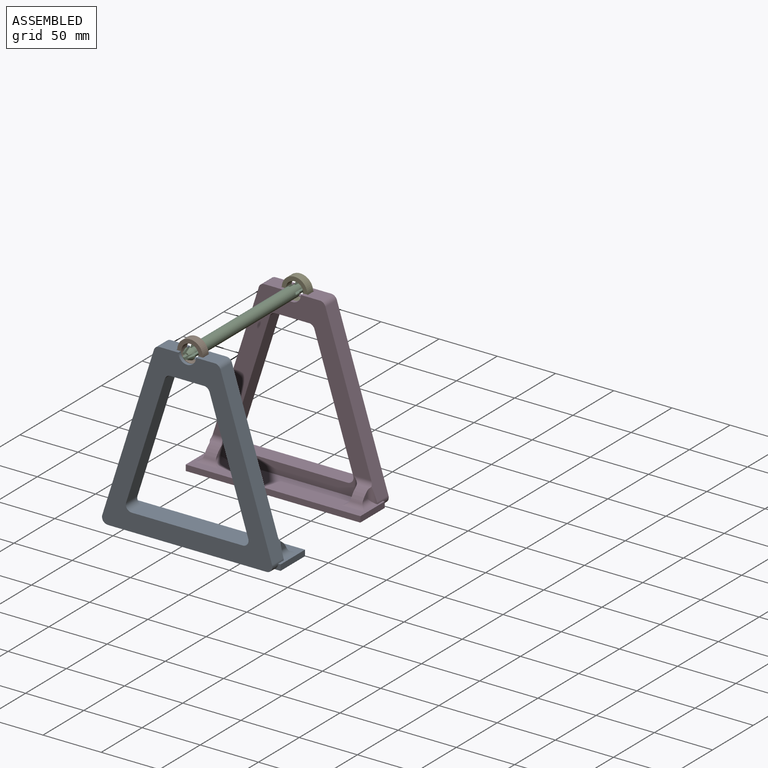
[diagram: assembled view]
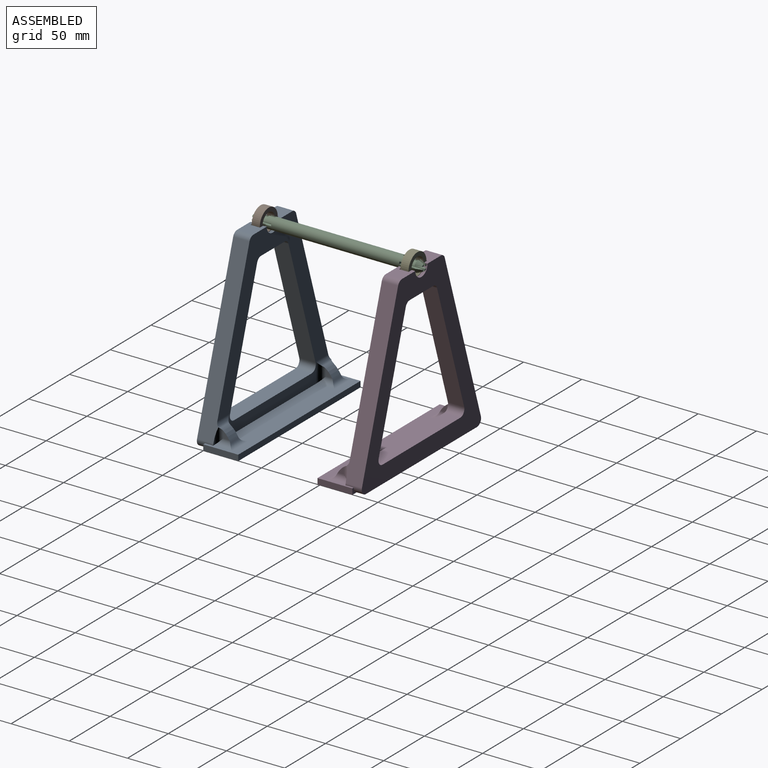
[diagram: assembled view, second angle]
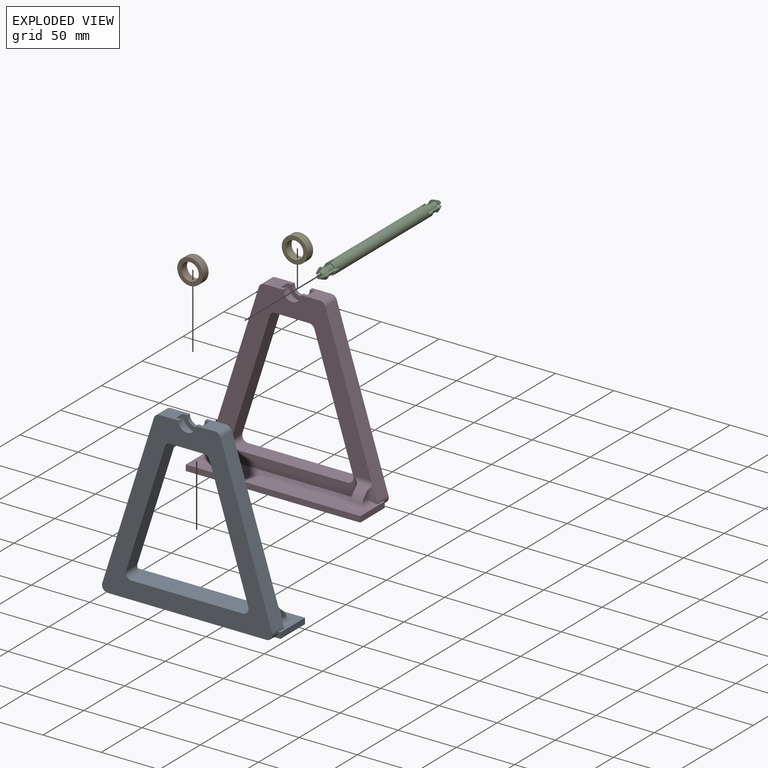
[diagram: exploded view]
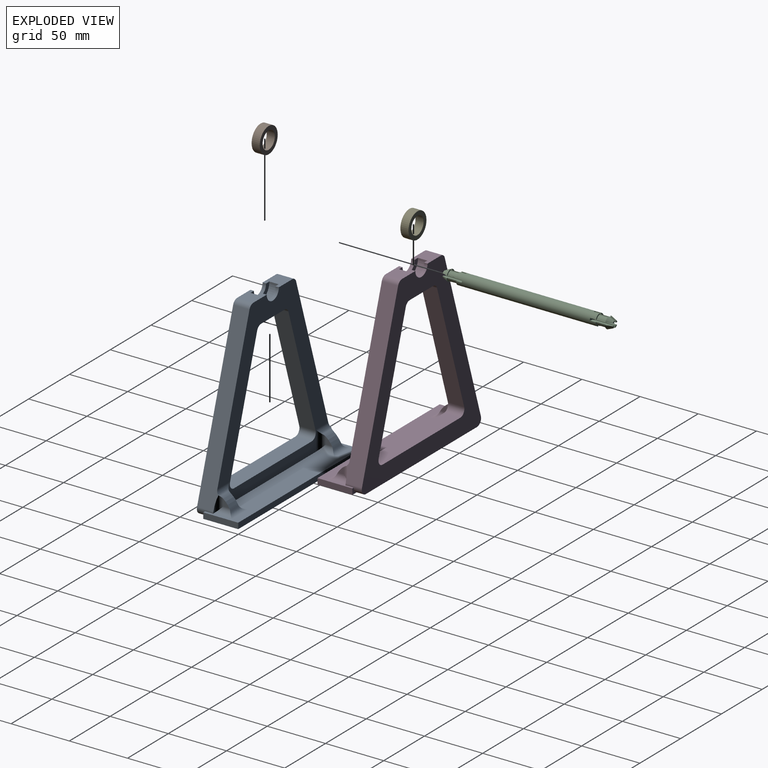
[diagram: exploded view, second angle]
ASSEMBLY  parts=5 mates=2
PART A: 50 faces, bbox 150.1x37.1x150.1 mm
  f0: plane 145x136.11mm, normal (0,-1,0), area 5614.6mm2, adj f2,f4,f5,f6,f7,f8,f9,f10
  f1: plane 1.3x0.17mm, normal (0,-1,0), area 0.1mm2, adj f16,f30,f49
  f2: plane 16.34x14mm, normal (0,0,1), area 196.7mm2, adj f0,f3,f8,f13,f17,f22,f23,f24
  f3: cylinder r=7.5mm len=15mm, axis (0,1,0), area 70.7mm2, adj f2,f4,f13,f23
  f4: plane 16.34x14mm, normal (0,0,1), area 196.7mm2, adj f0,f3,f8,f13,f14,f22,f23,f24
  f5: plane 105x33.25mm, normal (0.95,0,-0.3), area 1541.9mm2, adj f0,f13,f18,f21
  f6: plane 28.88x14mm, normal (0,0,-1), area 404.3mm2, adj f0,f13,f18,f19
  f7: plane 105x33.25mm, normal (-0.95,0,-0.3), area 1541.9mm2, adj f0,f13,f19,f20
  f8: cylinder r=7.5mm len=15mm, axis (0,1,0), area 70.7mm2, adj f0,f2,f4,f24
  f9: plane 140.12x44.45mm, normal (-0.95,0,0.3), area 2064.5mm2, adj f0,f13,f14,f15,f39,f41
  f10: plane 140.12x44.45mm, normal (0.95,0,0.3), area 2064.5mm2, adj f0,f13,f16,f17,f47,f49
  f11: plane 95.38x14mm, normal (0,0,1), area 1335.3mm2, adj f0,f13,f20,f21
  f12: plane 1.3x0.17mm, normal (0,-1,0), area 0.1mm2, adj f15,f30,f39
  f13: plane 150x146.34mm, normal (0,1,0), area 6935.9mm2, adj f2,f3,f4,f5,f6,f7,f9,f10
  f14: cylinder r=5mm len=14mm, axis (0,1,0), area 88.5mm2, adj f0,f4,f9,f13
  f15: cylinder r=5mm len=14mm, axis (0,-1,0), area 76.4mm2, adj f9,f12,f13,f25,f30,f34,f39
  f16: cylinder r=5mm len=14mm, axis (0,1,0), area 76.4mm2, adj f1,f10,f13,f26,f30,f34,f49
  f17: cylinder r=5mm len=14mm, axis (0,1,0), area 88.5mm2, adj f0,f2,f10,f13
  f18: cylinder r=5mm len=14mm, axis (0,1,0), area 88.5mm2, adj f0,f5,f6,f13
  f19: cylinder r=5mm len=14mm, axis (0,-1,0), area 88.5mm2, adj f0,f6,f7,f13
  f20: cylinder r=5mm len=14mm, axis (0,1,0), area 131.4mm2, adj f0,f7,f11,f13
  f21: cylinder r=5mm len=14mm, axis (0,-1,0), area 131.4mm2, adj f0,f5,f11,f13
  f22: cylinder r=11.5mm len=23mm, axis (0,-1,0), area 289mm2, adj f2,f4,f23,f24
  f23: plane 23x11.5mm, normal (0,-1,0), area 119.4mm2, adj f2,f3,f4,f22
  f24: plane 23x11.5mm, normal (0,1,0), area 119.4mm2, adj f2,f4,f8,f22
  f25: plane 7.13x5mm, normal (0,1,0), area 16mm2, adj f15,f27,f30,f34
  f26: plane 6.53x5mm, normal (0,1,0), area 13mm2, adj f16,f29,f30,f34
  f27: plane 30x5mm, normal (-1,0,0), area 150mm2, adj f25,f28,f30,f34
  f28: plane 150x5mm, normal (0,-1,0), area 750mm2, adj f27,f29,f30,f34
  f29: plane 30x5mm, normal (1,0,0), area 150mm2, adj f26,f28,f30,f34
  f30: plane 150x30mm, normal (0,0,1), area 2839.1mm2, adj f0,f1,f12,f15,f16,f25,f26,f27
  f31: plane 6x5.32mm, normal (-1,0,0), area 18.1mm2, adj f33,f44,f45
  f32: plane 6x5.32mm, normal (1,0,0), area 18.1mm2, adj f33,f48,f49
  f33: cylinder r=20mm len=11.23mm, axis (-1,0,0), area 133.4mm2, adj f31,f32,f44,f45,f46,f47,f48,f49
  f34: plane 150x37mm, normal (0,0,-1), area 5454.4mm2, adj f13,f15,f16,f25,f26,f27,f28,f29
  f35: cylinder r=20mm len=11.23mm, axis (-1,0,0), area 133.4mm2, adj f36,f37,f38,f39,f40,f41,f42,f43
  f36: plane 6x5.32mm, normal (1,0,0), area 18.1mm2, adj f35,f42,f43
  f37: plane 6x5.32mm, normal (-1,0,0), area 18.1mm2, adj f35,f38,f39
  f38: cylinder r=5mm len=15.91mm, axis (0,-1,0), area 85.2mm2, adj f30,f35,f37,f39,f40
  f39: cylinder r=5mm len=13.18mm, axis (0,0,-1), area 61.9mm2, adj f9,f12,f15,f35,f37,f38,f41
  f40: cylinder r=5mm len=20mm, axis (-1,0,0), area 85.9mm2, adj f30,f35,f38,f42
  f41: cylinder r=5mm len=16.24mm, axis (-1,0,0), area 71mm2, adj f0,f9,f35,f39,f43
  f42: cylinder r=5mm len=15.91mm, axis (0,1,0), area 85.2mm2, adj f30,f35,f36,f40,f43
  f43: cylinder r=5mm len=16.93mm, axis (0,0,1), area 92.9mm2, adj f0,f35,f36,f41,f42
  f44: cylinder r=5mm len=15.91mm, axis (0,-1,0), area 85.2mm2, adj f30,f31,f33,f45,f46
  f45: cylinder r=5mm len=16.93mm, axis (0,0,-1), area 92.9mm2, adj f0,f31,f33,f44,f47
  f46: cylinder r=5mm len=20mm, axis (-1,0,0), area 85.9mm2, adj f30,f33,f44,f48
  f47: cylinder r=5mm len=16.24mm, axis (-1,0,0), area 71mm2, adj f0,f10,f33,f45,f49
  f48: cylinder r=5mm len=15.91mm, axis (0,1,0), area 85.2mm2, adj f30,f32,f33,f46,f49
  f49: cylinder r=5mm len=13.18mm, axis (0,0,1), area 61.9mm2, adj f1,f10,f16,f32,f33,f47,f48
PART B: 4 faces, bbox 22x7x22 mm
  f0: cylinder r=7.5mm len=15mm, axis (0,1,0), area 329.9mm2, adj f2,f3
  f1: cylinder r=11mm len=22mm, axis (0,1,0), area 483.8mm2, adj f2,f3
  f2: plane 22x22mm, normal (0,-1,0), area 203.4mm2, adj f0,f1
  f3: plane 22x22mm, normal (0,1,0), area 203.4mm2, adj f0,f1
PART C: 59 faces, bbox 10.1x146.1x10.1 mm
  f0: cylinder r=5mm len=120mm, axis (0,1,0), area 3689.4mm2, adj f1,f2,f3,f4,f21,f22,f23,f24
  f1: plane 3.9x3.9mm, normal (0,1,0), area 5.1mm2, adj f0,f5,f21,f28
  f2: plane 3.9x3.9mm, normal (0,1,0), area 5.1mm2, adj f0,f6,f24,f25
  f3: plane 3.9x3.9mm, normal (0,1,0), area 5.1mm2, adj f0,f7,f26,f27
  f4: plane 3.9x3.9mm, normal (0,1,0), area 5.1mm2, adj f0,f8,f22,f23
  f5: cylinder r=4mm len=8mm, axis (0,1,0), area 34.1mm2, adj f1,f9,f21,f28
  f6: cylinder r=4mm len=8mm, axis (0,1,0), area 34.1mm2, adj f2,f10,f24,f25
  f7: cylinder r=4mm len=8mm, axis (0,1,0), area 34.1mm2, adj f3,f11,f26,f27
  f8: cylinder r=4mm len=8mm, axis (0,1,0), area 34.1mm2, adj f4,f12,f22,f23
  f9: plane 3.9x3.9mm, normal (0,-1,0), area 5.1mm2, adj f5,f13,f21,f28
  f10: plane 3.9x3.9mm, normal (0,-1,0), area 5.1mm2, adj f6,f14,f24,f25
  f11: plane 3.9x3.9mm, normal (0,-1,0), area 5.1mm2, adj f7,f15,f26,f27
  f12: plane 3.9x3.9mm, normal (0,-1,0), area 5.1mm2, adj f8,f16,f22,f23
  f13: cone r=3mm half-angle=21.8deg, axis (0,-1,0), area 22.4mm2, adj f9,f17,f21,f28
  f14: cone r=3mm half-angle=21.8deg, axis (0,-1,0), area 22.4mm2, adj f10,f18,f24,f25
  f15: cone r=3mm half-angle=21.8deg, axis (0,-1,0), area 22.4mm2, adj f11,f20,f26,f27
  f16: cone r=3mm half-angle=21.8deg, axis (0,-1,0), area 22.4mm2, adj f12,f19,f22,f23
  f17: plane 1.83x1.83mm, normal (0,1,0), area 2.2mm2, adj f13,f21,f28
  f18: plane 1.83x1.83mm, normal (0,1,0), area 2.2mm2, adj f14,f24,f25
  f19: plane 1.83x1.83mm, normal (0,1,0), area 2.2mm2, adj f16,f22,f23
  f20: plane 1.83x1.83mm, normal (0,1,0), area 2.2mm2, adj f15,f26,f27
  f21: plane 18.14x4.04mm, normal (0,0,-1), area 56.8mm2, adj f0,f1,f5,f9,f13,f17,f28,f29
  f22: plane 18.14x4.04mm, normal (0,0,1), area 56.8mm2, adj f0,f4,f8,f12,f16,f19,f23,f29
  f23: plane 18.14x4.04mm, normal (1,0,0), area 56.8mm2, adj f0,f4,f8,f12,f16,f19,f22,f29
  f24: plane 18.14x4.04mm, normal (-1,0,0), area 56.8mm2, adj f0,f2,f6,f10,f14,f18,f25,f29
  f25: plane 18.14x4.04mm, normal (0,0,1), area 56.8mm2, adj f0,f2,f6,f10,f14,f18,f24,f29
  f26: plane 18.14x4.04mm, normal (0,0,-1), area 56.8mm2, adj f0,f3,f7,f11,f15,f20,f27,f29
  f27: plane 18.14x4.04mm, normal (-1,0,0), area 56.8mm2, adj f0,f3,f7,f11,f15,f20,f26,f29
  f28: plane 18.14x4.04mm, normal (1,0,0), area 56.8mm2, adj f0,f1,f5,f9,f13,f17,f21,f29
  f29: plane 10x10mm, normal (0,1,0), area 35.7mm2, adj f0,f21,f22,f23,f24,f25,f26,f27
  f30: plane 3.9x3.9mm, normal (0,-1,0), area 5.1mm2, adj f0,f34,f50,f57
  f31: plane 3.9x3.9mm, normal (0,-1,0), area 5.1mm2, adj f0,f35,f53,f54
  f32: plane 3.9x3.9mm, normal (0,-1,0), area 5.1mm2, adj f0,f36,f55,f56
  f33: plane 3.9x3.9mm, normal (0,-1,0), area 5.1mm2, adj f0,f37,f51,f52
  f34: cylinder r=4mm len=8mm, axis (0,-1,0), area 34.1mm2, adj f30,f38,f50,f57
  f35: cylinder r=4mm len=8mm, axis (0,-1,0), area 34.1mm2, adj f31,f39,f53,f54
  f36: cylinder r=4mm len=8mm, axis (0,-1,0), area 34.1mm2, adj f32,f40,f55,f56
  f37: cylinder r=4mm len=8mm, axis (0,-1,0), area 34.1mm2, adj f33,f41,f51,f52
  f38: plane 3.9x3.9mm, normal (0,1,0), area 5.1mm2, adj f34,f42,f50,f57
  f39: plane 3.9x3.9mm, normal (0,1,0), area 5.1mm2, adj f35,f43,f53,f54
  f40: plane 3.9x3.9mm, normal (0,1,0), area 5.1mm2, adj f36,f44,f55,f56
  f41: plane 3.9x3.9mm, normal (0,1,0), area 5.1mm2, adj f37,f45,f51,f52
  f42: cone r=3mm half-angle=21.8deg, axis (0,1,0), area 22.4mm2, adj f38,f46,f50,f57
  f43: cone r=3mm half-angle=21.8deg, axis (0,1,0), area 22.4mm2, adj f39,f47,f53,f54
  f44: cone r=3mm half-angle=21.8deg, axis (0,1,0), area 22.4mm2, adj f40,f49,f55,f56
  f45: cone r=3mm half-angle=21.8deg, axis (0,1,0), area 22.4mm2, adj f41,f48,f51,f52
  f46: plane 1.83x1.83mm, normal (0,-1,0), area 2.2mm2, adj f42,f50,f57
  f47: plane 1.83x1.83mm, normal (0,-1,0), area 2.2mm2, adj f43,f53,f54
  f48: plane 1.83x1.83mm, normal (0,-1,0), area 2.2mm2, adj f45,f51,f52
  f49: plane 1.83x1.83mm, normal (0,-1,0), area 2.2mm2, adj f44,f55,f56
  f50: plane 18.14x4.04mm, normal (0,0,-1), area 56.8mm2, adj f0,f30,f34,f38,f42,f46,f57,f58
  f51: plane 18.14x4.04mm, normal (0,0,1), area 56.8mm2, adj f0,f33,f37,f41,f45,f48,f52,f58
  f52: plane 18.14x4.04mm, normal (1,0,0), area 56.8mm2, adj f0,f33,f37,f41,f45,f48,f51,f58
  f53: plane 18.14x4.04mm, normal (-1,0,0), area 56.8mm2, adj f0,f31,f35,f39,f43,f47,f54,f58
  f54: plane 18.14x4.04mm, normal (0,0,1), area 56.8mm2, adj f0,f31,f35,f39,f43,f47,f53,f58
  f55: plane 18.14x4.04mm, normal (0,0,-1), area 56.8mm2, adj f0,f32,f36,f40,f44,f49,f56,f58
  f56: plane 18.14x4.04mm, normal (-1,0,0), area 56.8mm2, adj f0,f32,f36,f40,f44,f49,f55,f58
  f57: plane 18.14x4.04mm, normal (1,0,0), area 56.8mm2, adj f0,f30,f34,f38,f42,f46,f50,f58
  f58: plane 10x10mm, normal (0,-1,0), area 35.7mm2, adj f0,f50,f51,f52,f53,f54,f55,f56
PART D: same geometry as A
PART E: same geometry as B
PLACE A rot(axis=(0,0,1),180deg) t=(-75.3,-30,0)mm
PLACE B rot(axis=(0,1,0),118.5deg) t=(-75.3,-26.5,150)mm
PLACE C rot(axis=(0,1,0),170.1deg) t=(-75.3,34,150)mm
PLACE D t=(-74.8,98,0)mm
PLACE E t=(-75.08,101.42,149.75)mm
MATE revolute B.f1 <-> A.f22  axis (0,-1,0) through (-75.3,-33.5,150)mm
MATE revolute C.f0 <-> B.f0  axis (0,-1,0) through (-75.3,-26,150)mm
